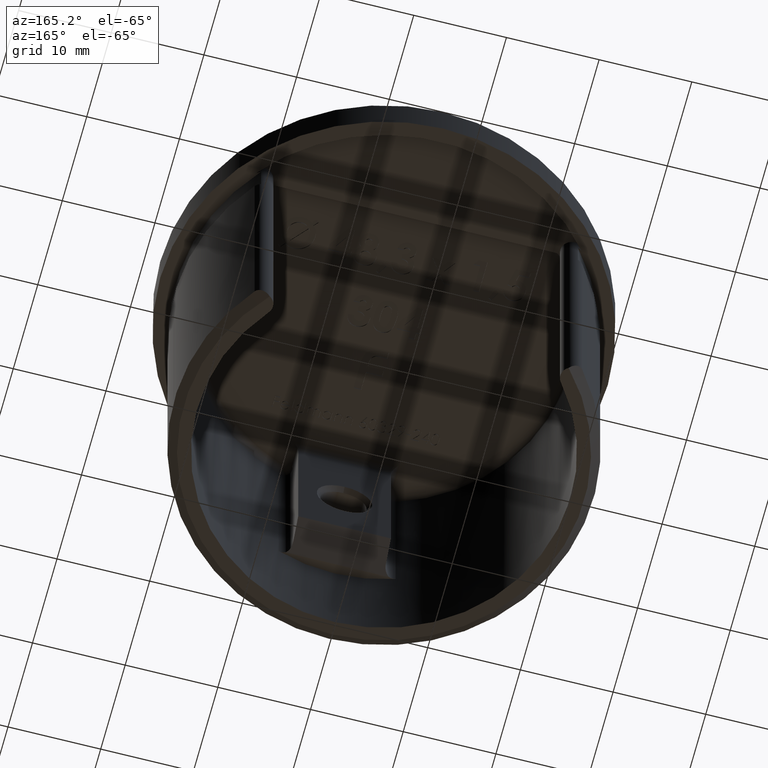
[diagram: clean part render]
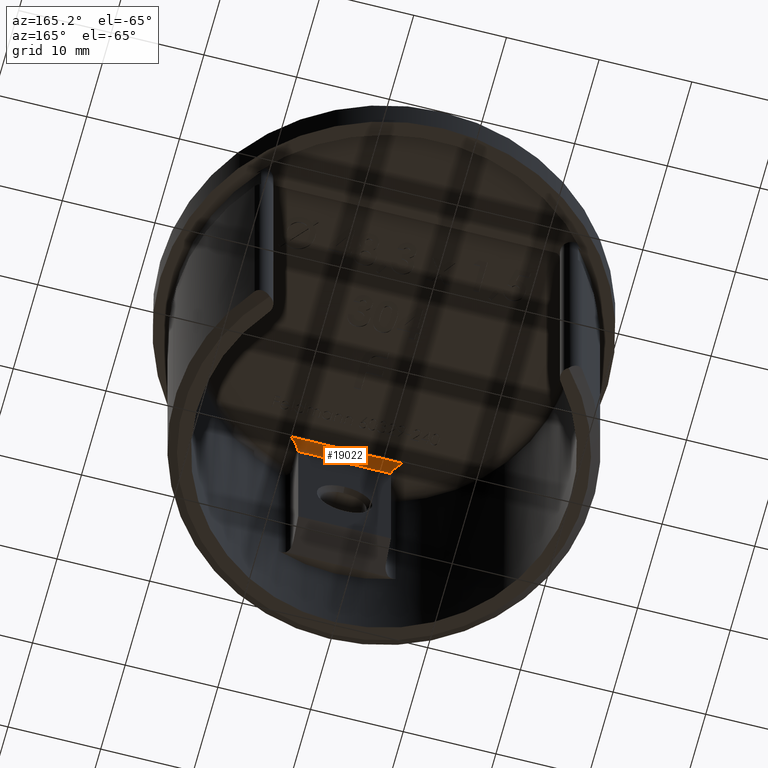
[diagram: same view with one face highlighted and labeled with its STEP entity id]
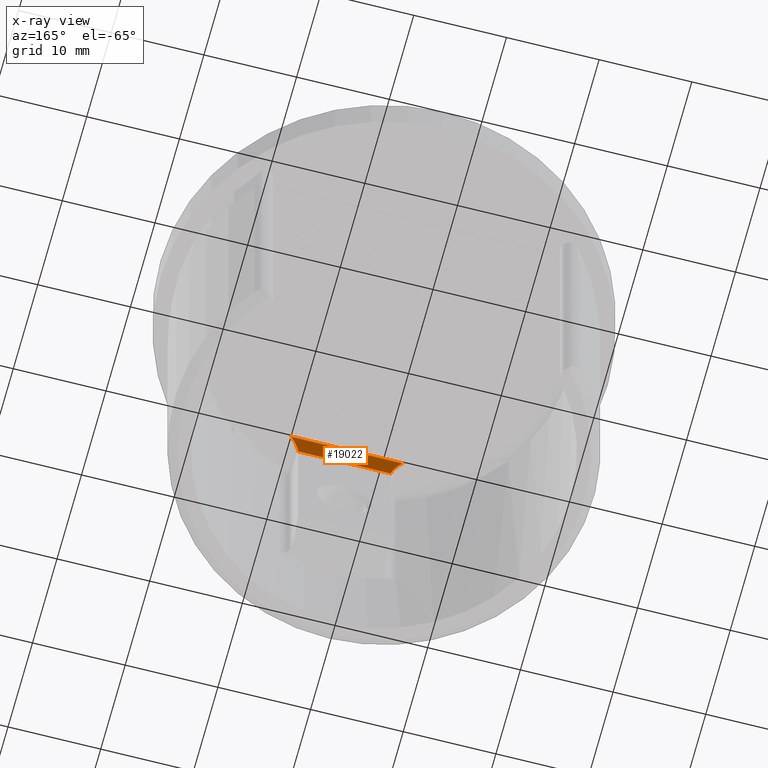
[diagram: x-ray of the same camera — body ghosted, the highlighted face saturated]
A machine part, auxiliary view. The second image highlights one B-rep face of the part: STEP entity #19022.
The next image is the same camera in x-ray: the body ghosted, the highlighted face saturated — about 0% of this face is hidden behind the body in this view.
In plain terms, the highlighted cylindrical surface (edge-blend (fillet) strip) has radius 1 mm, axis along (1, 0, 0).
Its self-contained STEP definition (entity closure, byte-faithful):
#637 = ORIENTED_EDGE ( 'NONE', *, *, #22076, .F. ) ;
#2509 = ORIENTED_EDGE ( 'NONE', *, *, #13755, .F. ) ;
#2677 = VECTOR ( 'NONE', #16675, 1000.000000000000000 ) ;
#3220 = ORIENTED_EDGE ( 'NONE', *, *, #5975, .F. ) ;
#4786 = CARTESIAN_POINT ( 'NONE',  ( 4.999999999999998200, -16.10000000000001600, 1.000000000000000900 ) ) ;
#5339 = VERTEX_POINT ( 'NONE', #22327 ) ;
#5388 = VERTEX_POINT ( 'NONE', #16725 ) ;
#5907 = VERTEX_POINT ( 'NONE', #12957 ) ;
#5975 = EDGE_CURVE ( 'NONE', #5907, #5388, #6962, .T. ) ;
#6189 =( BOUNDED_CURVE ( )  B_SPLINE_CURVE ( 3, ( #17680, #23370, #11840, #14035 ),
 .UNSPECIFIED., .F., .F. ) 
 B_SPLINE_CURVE_WITH_KNOTS ( ( 4, 4 ),
 ( 1.570796326794896600, 3.141592653589792200 ),
 .UNSPECIFIED. ) 
 CURVE ( )  GEOMETRIC_REPRESENTATION_ITEM ( )  RATIONAL_B_SPLINE_CURVE ( ( 1.000000000000000000, 0.8047378541243652700, 0.8047378541243652700, 1.000000000000000000 ) ) 
 REPRESENTATION_ITEM ( '' )  );
#6962 = LINE ( 'NONE', #12798, #19329 ) ;
#7045 = DIRECTION ( 'NONE',  ( 0.0000000000000000000, 0.0000000000000000000, -1.000000000000000000 ) ) ;
#7604 = FACE_OUTER_BOUND ( 'NONE', #9883, .T. ) ;
#8891 = DIRECTION ( 'NONE',  ( 1.000000000000000000, 0.0000000000000000000, 0.0000000000000000000 ) ) ;
#9883 = EDGE_LOOP ( 'NONE', ( #15409, #3220, #637, #2509 ) ) ;
#10052 = CARTESIAN_POINT ( 'NONE',  ( 5.414213562373094900, -15.68578643762692200, 2.000000000000000000 ) ) ;
#10552 = CYLINDRICAL_SURFACE ( 'NONE', #13864, 1.000000000000000000 ) ;
#11840 = CARTESIAN_POINT ( 'NONE',  ( -4.999999999999999100, -16.10000000000001600, 1.585786437626905700 ) ) ;
#12798 = CARTESIAN_POINT ( 'NONE',  ( 5.999999999999998200, -16.10000000000001600, 1.000000000000000000 ) ) ;
#12957 = CARTESIAN_POINT ( 'NONE',  ( -4.999999999999998200, -16.10000000000001600, 1.000000000000000900 ) ) ;
#13755 = EDGE_CURVE ( 'NONE', #5339, #19993, #17689, .T. ) ;
#13864 = AXIS2_PLACEMENT_3D ( 'NONE', #20310, #8891, #7045 ) ;
#14035 = CARTESIAN_POINT ( 'NONE',  ( -4.999999999999998200, -16.10000000000001600, 1.000000000000000900 ) ) ;
#15409 = ORIENTED_EDGE ( 'NONE', *, *, #20783, .F. ) ;
#15800 = CARTESIAN_POINT ( 'NONE',  ( 5.999999999999999100, -15.10000000000001600, 2.000000000000000000 ) ) ;
#16675 = DIRECTION ( 'NONE',  ( -1.000000000000000000, 0.0000000000000000000, 0.0000000000000000000 ) ) ;
#16676 = DIRECTION ( 'NONE',  ( 1.000000000000000000, -0.0000000000000000000, -0.0000000000000000000 ) ) ;
#16725 = CARTESIAN_POINT ( 'NONE',  ( 4.999999999999998200, -16.10000000000001600, 1.000000000000000900 ) ) ;
#17680 = CARTESIAN_POINT ( 'NONE',  ( -5.999999999999998200, -15.10000000000001600, 2.000000000000000000 ) ) ;
#17689 = LINE ( 'NONE', #24008, #2677 ) ;
#17931 = CARTESIAN_POINT ( 'NONE',  ( 4.999999999999999100, -16.10000000000001600, 1.585786437626905100 ) ) ;
#19022 = ADVANCED_FACE ( 'NONE', ( #7604 ), #10552, .F. ) ;
#19154 = CARTESIAN_POINT ( 'NONE',  ( -5.999999999999998200, -15.10000000000001600, 2.000000000000000000 ) ) ;
#19329 = VECTOR ( 'NONE', #16676, 1000.000000000000000 ) ;
#19993 = VERTEX_POINT ( 'NONE', #19154 ) ;
#20310 = CARTESIAN_POINT ( 'NONE',  ( -16.72500000000000500, -15.10000000000001600, 1.000000000000000000 ) ) ;
#20783 = EDGE_CURVE ( 'NONE', #5388, #5339, #21567, .T. ) ;
#21567 =( BOUNDED_CURVE ( )  B_SPLINE_CURVE ( 3, ( #4786, #17931, #10052, #15800 ),
 .UNSPECIFIED., .F., .F. ) 
 B_SPLINE_CURVE_WITH_KNOTS ( ( 4, 4 ),
 ( 8.673617379884026600E-016, 1.570796326794896600 ),
 .UNSPECIFIED. ) 
 CURVE ( )  GEOMETRIC_REPRESENTATION_ITEM ( )  RATIONAL_B_SPLINE_CURVE ( ( 1.000000000000000000, 0.8047378541243652700, 0.8047378541243652700, 1.000000000000000000 ) ) 
 REPRESENTATION_ITEM ( '' )  );
#22076 = EDGE_CURVE ( 'NONE', #19993, #5907, #6189, .T. ) ;
#22327 = CARTESIAN_POINT ( 'NONE',  ( 5.999999999999999100, -15.10000000000001600, 2.000000000000000000 ) ) ;
#23370 = CARTESIAN_POINT ( 'NONE',  ( -5.414213562373094900, -15.68578643762692200, 2.000000000000000000 ) ) ;
#24008 = CARTESIAN_POINT ( 'NONE',  ( -5.999999999999998200, -15.10000000000001600, 2.000000000000000000 ) ) ;